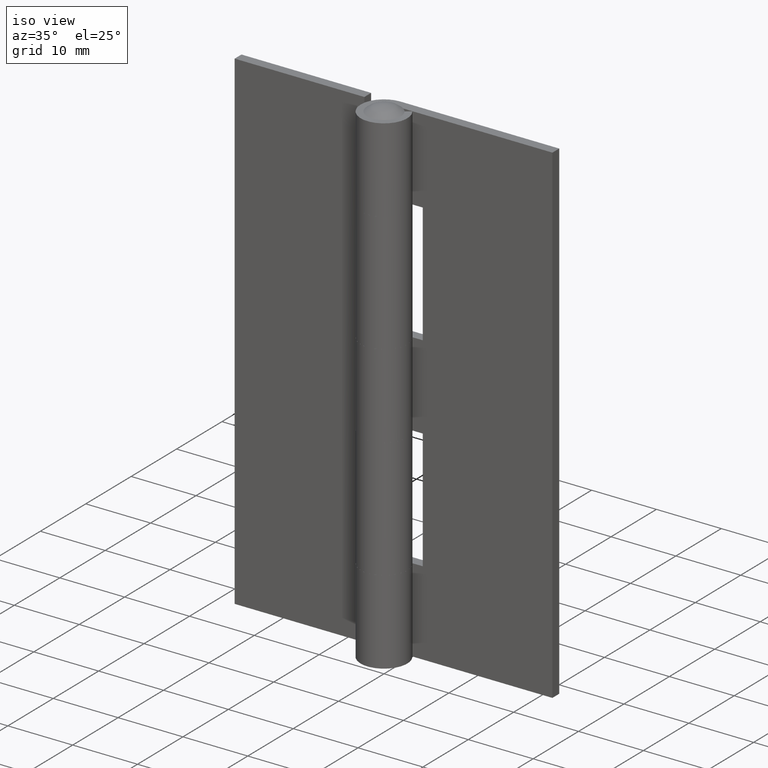
[diagram: clean part render]
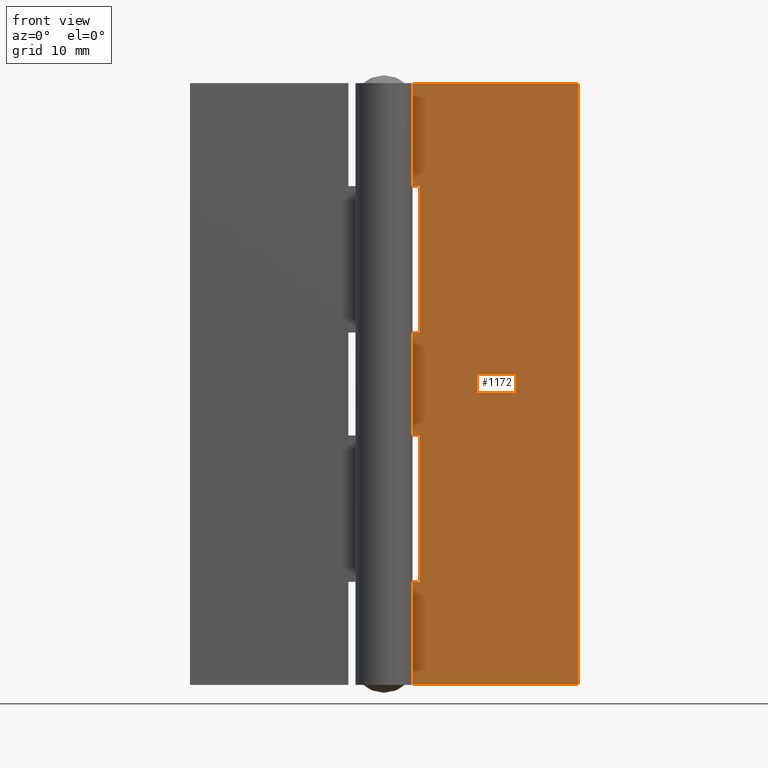
[diagram: tour spotlight — one face highlighted and labeled with its STEP entity id]
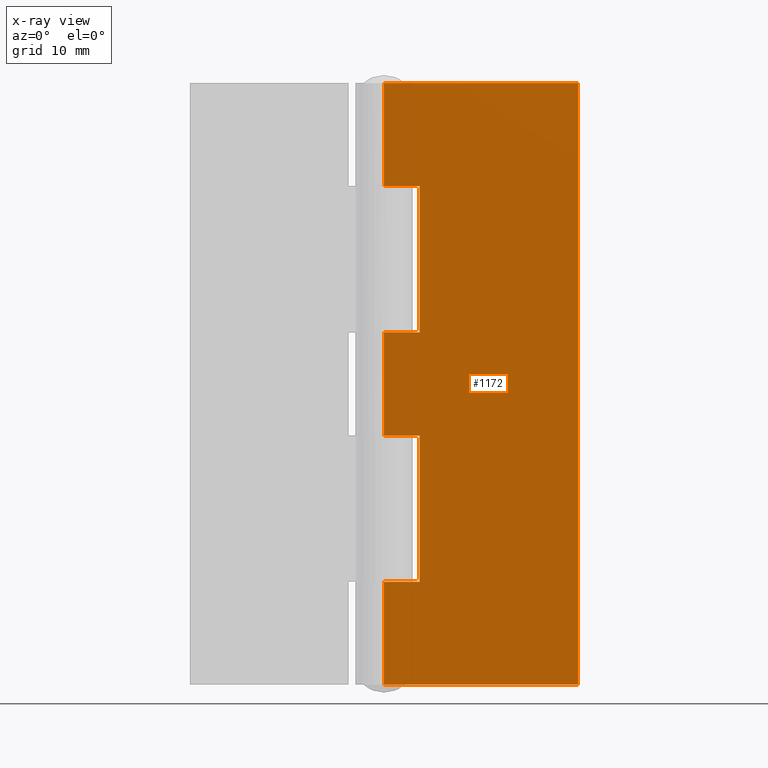
[diagram: x-ray of the same camera — body ghosted, this tour face saturated]
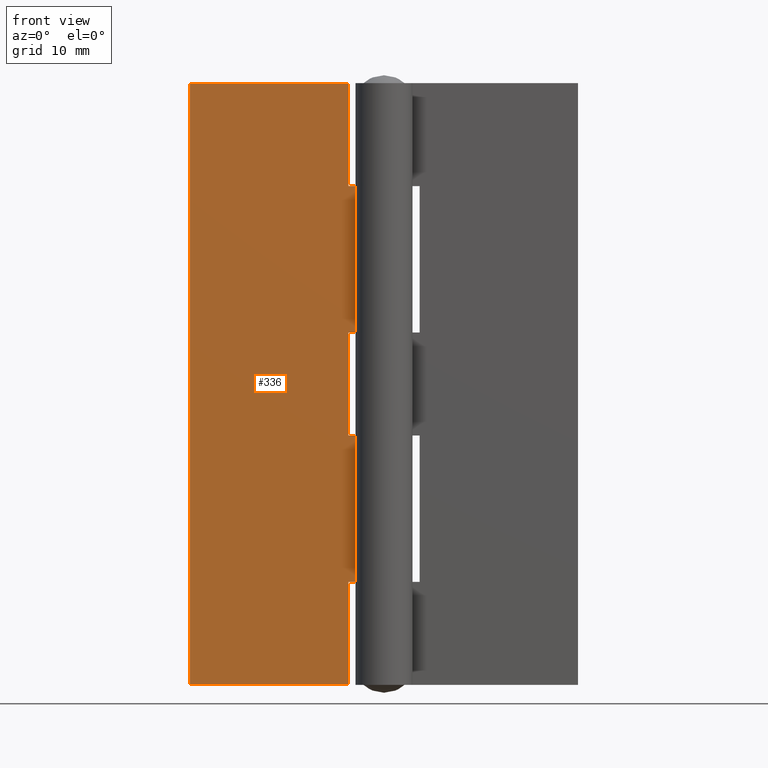
[diagram: tour spotlight — one face highlighted and labeled with its STEP entity id]
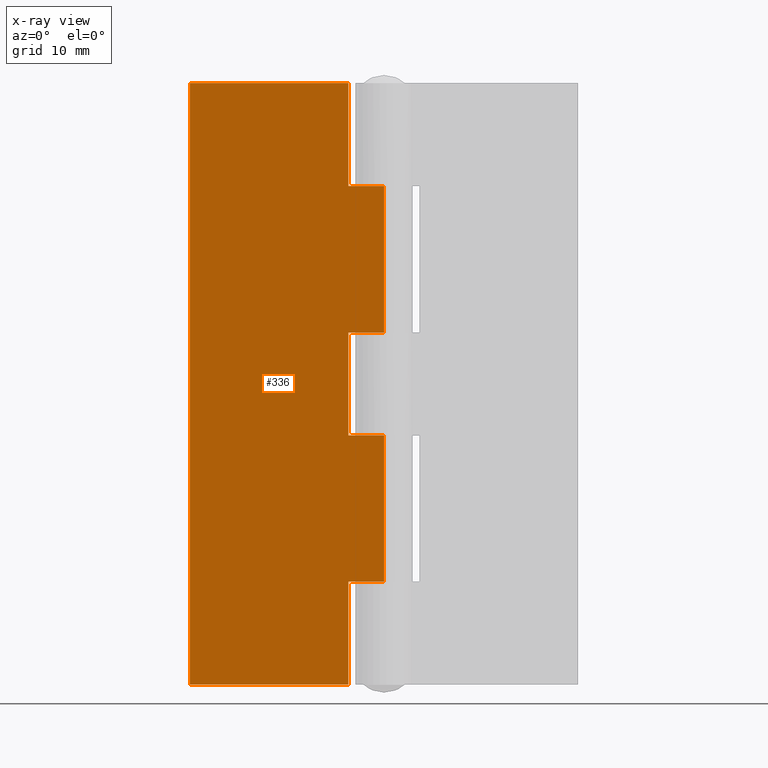
[diagram: x-ray of the same camera — body ghosted, this tour face saturated]
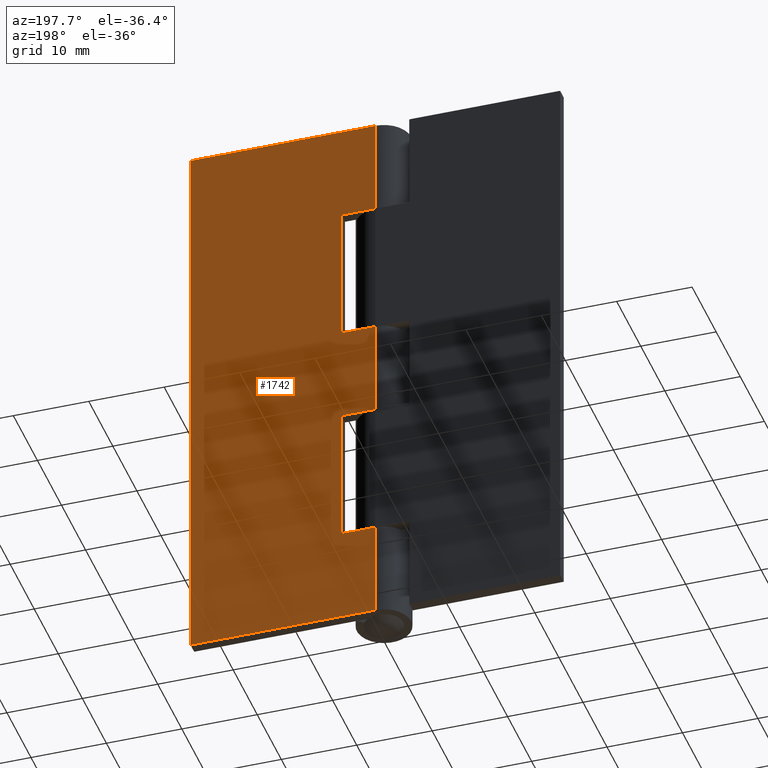
[diagram: tour spotlight — one face highlighted and labeled with its STEP entity id]
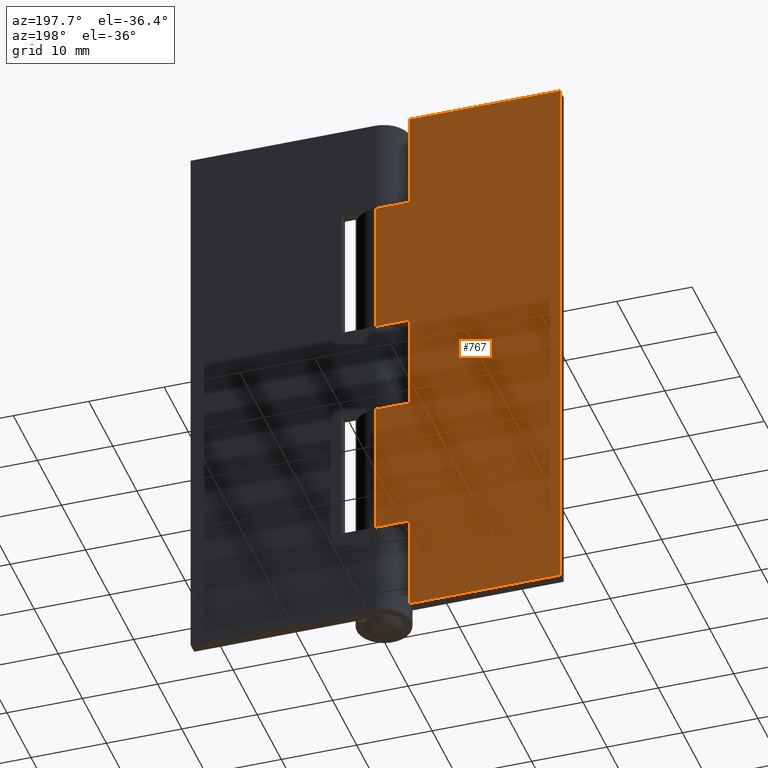
[diagram: tour spotlight — one face highlighted and labeled with its STEP entity id]
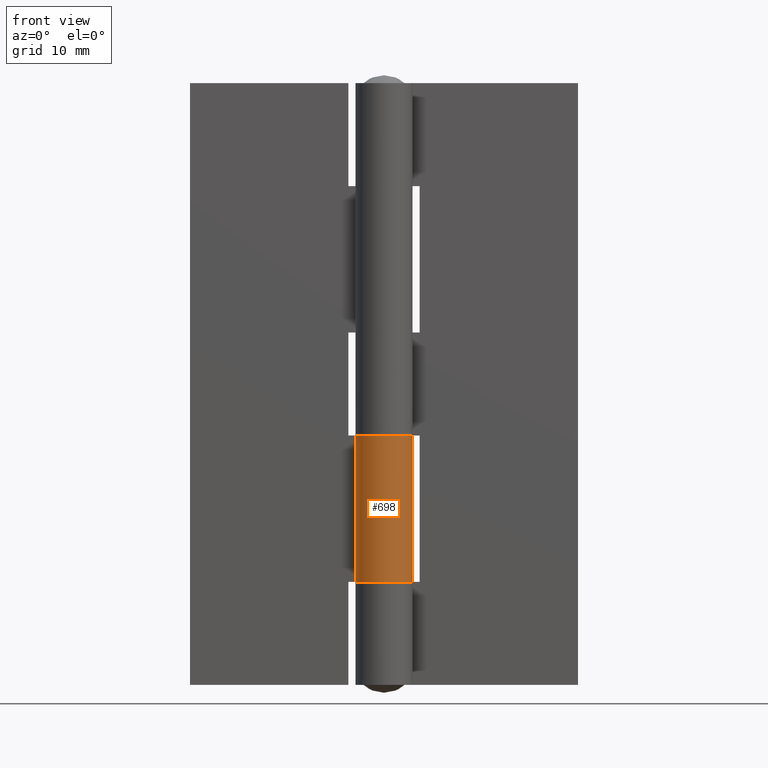
[diagram: tour spotlight — one face highlighted and labeled with its STEP entity id]
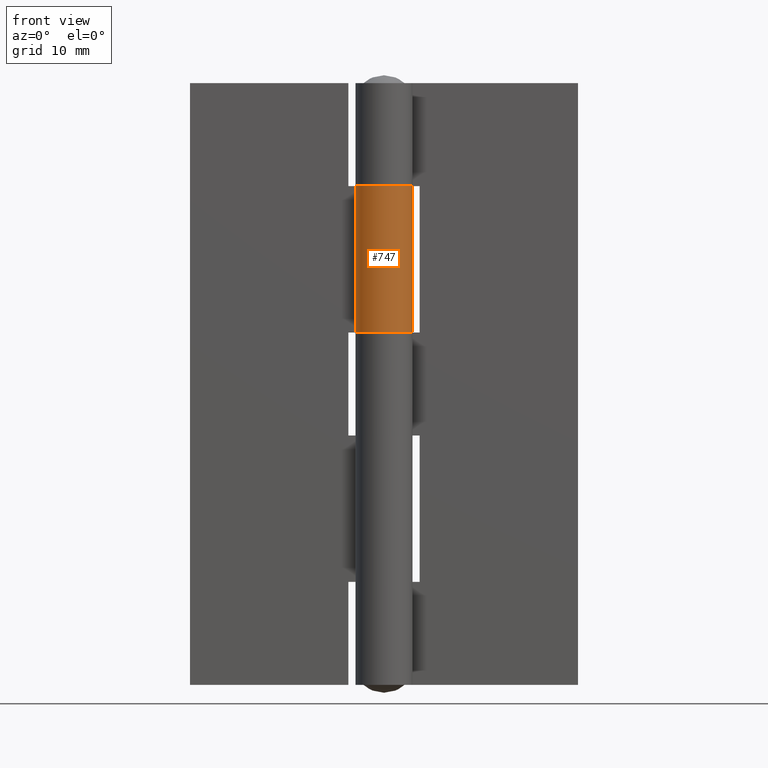
[diagram: tour spotlight — one face highlighted and labeled with its STEP entity id]
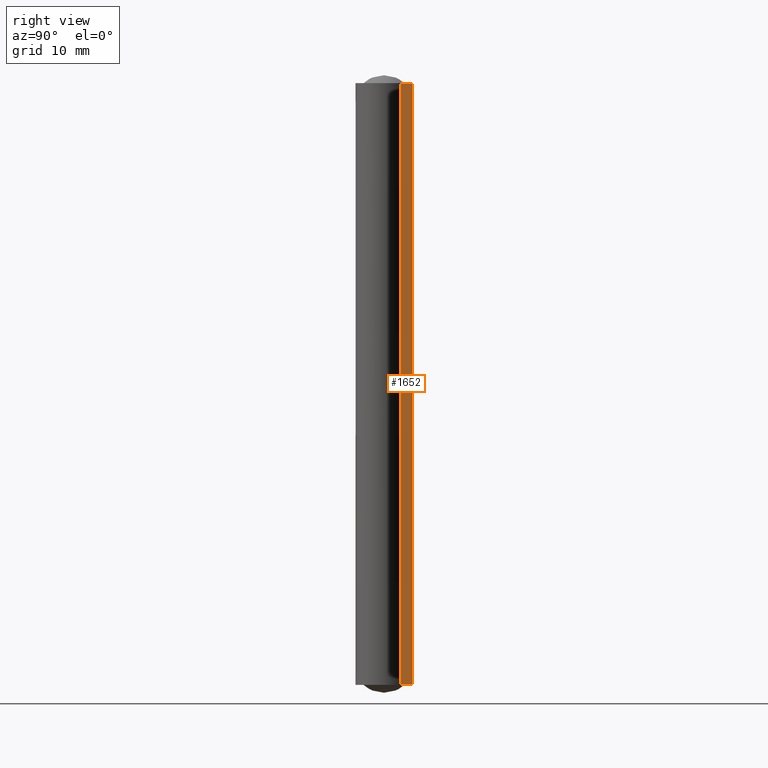
[diagram: tour spotlight — one face highlighted and labeled with its STEP entity id]
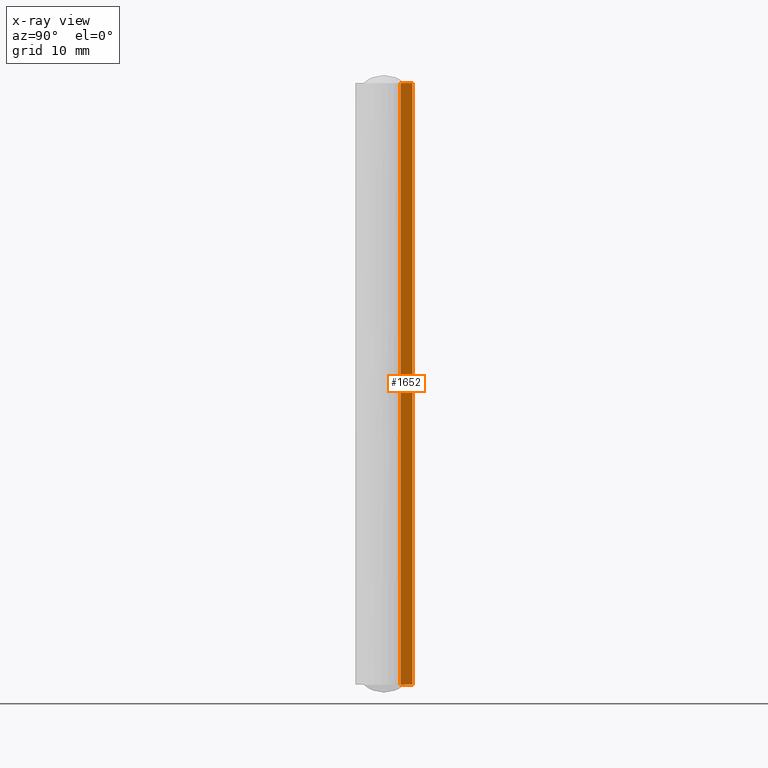
[diagram: x-ray of the same camera — body ghosted, this tour face saturated]
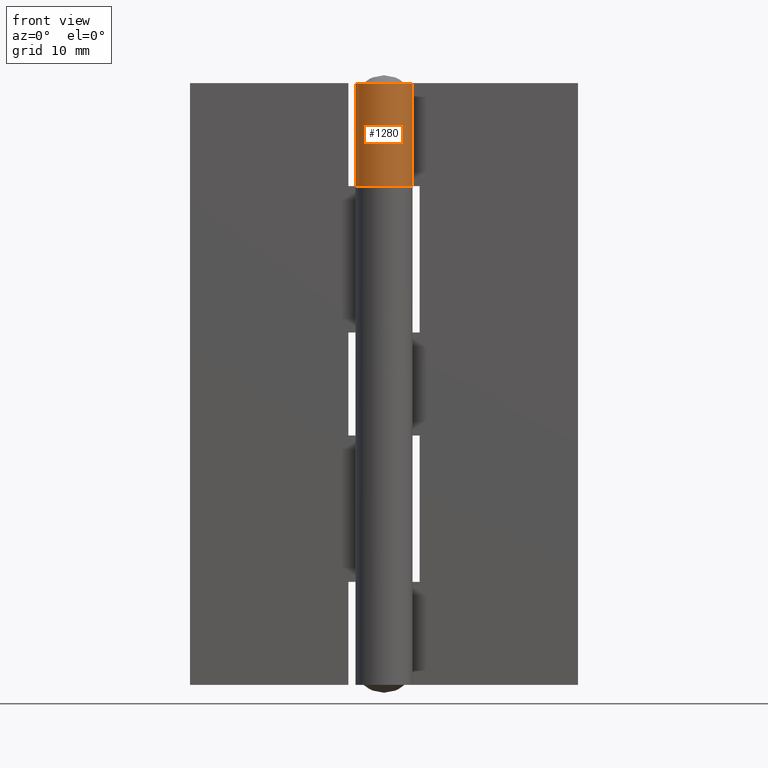
[diagram: tour spotlight — one face highlighted and labeled with its STEP entity id]
A machine part: a face-by-face anatomy tour. The part has 44 B-rep faces; the first image is the clean iso view, then the 8 largest visible faces are spotlighted one at a time (largest first), each with its STEP entity span.

Face 1 — front view, entity #1172. An x-ray twin of the same camera follows (body ghosted, this face saturated) — the face is partly hidden behind the body. In plain terms, the highlighted face is a freeform B-spline surface patch.
Definition (entity closure, byte-faithful):
#794=CARTESIAN_POINT('',(0.002898274659664,2.099998000000030,13.0));
#795=VERTEX_POINT('',#794);
#834=CARTESIAN_POINT('',(0.002898274659664,2.099998000000030,0.0));
#835=VERTEX_POINT('',#834);
#865=CARTESIAN_POINT('',(0.002898274659664,2.099998000000030,13.0));
#866=CARTESIAN_POINT('',(0.002898274659664,2.099998000000030,0.0));
#867=QUASI_UNIFORM_CURVE('',1,(#865,#866),.UNSPECIFIED.,.F.,.U.);
#868=EDGE_CURVE('',#795,#835,#867,.T.);
#931=CARTESIAN_POINT('',(0.002898274659664,2.099998000000030,63.0));
#932=VERTEX_POINT('',#931);
#963=CARTESIAN_POINT('',(0.002898274659664,2.099998000000030,76.0));
#964=VERTEX_POINT('',#963);
#965=CARTESIAN_POINT('',(0.002898274659664,2.099998000000030,76.0));
#966=CARTESIAN_POINT('',(0.002898274659664,2.099998000000030,63.0));
#967=QUASI_UNIFORM_CURVE('',1,(#965,#966),.UNSPECIFIED.,.F.,.U.);
#968=EDGE_CURVE('',#964,#932,#967,.T.);
#1027=CARTESIAN_POINT('',(0.002898274659664,2.099998000000030,44.500000000000000));
#1028=VERTEX_POINT('',#1027);
#1065=CARTESIAN_POINT('',(0.002898274659664,2.099998000000030,31.500000000000000));
#1066=VERTEX_POINT('',#1065);
#1097=CARTESIAN_POINT('',(0.002898274659664,2.099998000000030,44.500000000000000));
#1098=CARTESIAN_POINT('',(0.002898274659664,2.099998000000030,31.500000000000000));
#1099=QUASI_UNIFORM_CURVE('',1,(#1097,#1098),.UNSPECIFIED.,.F.,.U.);
#1100=EDGE_CURVE('',#1028,#1066,#1099,.T.);
#1105=CARTESIAN_POINT('',(-1.220731909040949,2.099998000000030,79.796199852697242));
#1106=CARTESIAN_POINT('',(-1.220731909040949,2.099998000000030,-3.796201891176106));
#1107=CARTESIAN_POINT('',(25.723630840764081,2.099998000000030,79.796199852697242));
#1108=CARTESIAN_POINT('',(25.723630840764081,2.099998000000030,-3.796201891176106));
#1109=B_SPLINE_SURFACE_WITH_KNOTS('',1,1,((#1105,#1107),(#1106,#1108)),.UNSPECIFIED.,.F.,.F.,.U.,(2,2),(2,2),(0.0,83.592401743873353),(0.0,26.944362749805030),.UNSPECIFIED.);
#1110=CARTESIAN_POINT('',(4.500000000000000,2.099998000000045,63.0));
#1111=VERTEX_POINT('',#1110);
#1112=CARTESIAN_POINT('',(4.500000000000000,2.099998000000045,44.500000000000000));
#1113=VERTEX_POINT('',#1112);
#1114=CARTESIAN_POINT('',(4.500000000000000,2.099998000000045,63.0));
#1115=CARTESIAN_POINT('',(4.500000000000000,2.099998000000045,44.500000000000000));
#1116=QUASI_UNIFORM_CURVE('',1,(#1114,#1115),.UNSPECIFIED.,.F.,.U.);
#1117=EDGE_CURVE('',#1111,#1113,#1116,.T.);
#1118=ORIENTED_EDGE('',*,*,#1117,.T.);
#1119=CARTESIAN_POINT('',(4.500000000000000,2.099998000000045,44.500000000000000));
#1120=CARTESIAN_POINT('',(0.002898274659664,2.099998000000030,44.500000000000000));
#1121=QUASI_UNIFORM_CURVE('',1,(#1119,#1120),.UNSPECIFIED.,.F.,.U.);
#1122=EDGE_CURVE('',#1113,#1028,#1121,.T.);
#1123=ORIENTED_EDGE('',*,*,#1122,.T.);
#1124=ORIENTED_EDGE('',*,*,#1100,.T.);
#1125=CARTESIAN_POINT('',(4.500000000000000,2.099998000000045,31.500000000000000));
#1126=VERTEX_POINT('',#1125);
#1127=CARTESIAN_POINT('',(0.002898274659664,2.099998000000030,31.500000000000000));
#1128=CARTESIAN_POINT('',(4.500000000000000,2.099998000000045,31.500000000000000));
#1129=QUASI_UNIFORM_CURVE('',1,(#1127,#1128),.UNSPECIFIED.,.F.,.U.);
#1130=EDGE_CURVE('',#1066,#1126,#1129,.T.);
#1131=ORIENTED_EDGE('',*,*,#1130,.T.);
#1132=CARTESIAN_POINT('',(4.500000000000000,2.099998000000045,13.0));
#1133=VERTEX_POINT('',#1132);
#1134=CARTESIAN_POINT('',(4.500000000000000,2.099998000000045,31.500000000000000));
#1135=CARTESIAN_POINT('',(4.500000000000000,2.099998000000045,13.0));
#1136=QUASI_UNIFORM_CURVE('',1,(#1134,#1135),.UNSPECIFIED.,.F.,.U.);
#1137=EDGE_CURVE('',#1126,#1133,#1136,.T.);
#1138=ORIENTED_EDGE('',*,*,#1137,.T.);
#1139=CARTESIAN_POINT('',(4.500000000000000,2.099998000000045,13.0));
#1140=CARTESIAN_POINT('',(0.002898274659664,2.099998000000030,13.0));
#1141=QUASI_UNIFORM_CURVE('',1,(#1139,#1140),.UNSPECIFIED.,.F.,.U.);
#1142=EDGE_CURVE('',#1133,#795,#1141,.T.);
#1143=ORIENTED_EDGE('',*,*,#1142,.T.);
#1144=ORIENTED_EDGE('',*,*,#868,.T.);
#1145=CARTESIAN_POINT('',(24.500000000000000,2.099998000000030,0.0));
#1146=VERTEX_POINT('',#1145);
#1147=CARTESIAN_POINT('',(24.500000000000000,2.099998000000030,0.0));
#1148=CARTESIAN_POINT('',(0.002898274659664,2.099998000000030,0.0));
#1149=QUASI_UNIFORM_CURVE('',1,(#1147,#1148),.UNSPECIFIED.,.F.,.U.);
#1150=EDGE_CURVE('',#1146,#835,#1149,.T.);
#1151=ORIENTED_EDGE('',*,*,#1150,.F.);
#1152=CARTESIAN_POINT('',(24.500000000000000,2.099998000000030,76.0));
#1153=VERTEX_POINT('',#1152);
#1154=CARTESIAN_POINT('',(24.500000000000000,2.099998000000030,76.0));
#1155=CARTESIAN_POINT('',(24.500000000000000,2.099998000000030,0.0));
#1156=QUASI_UNIFORM_CURVE('',1,(#1154,#1155),.UNSPECIFIED.,.F.,.U.);
#1157=EDGE_CURVE('',#1153,#1146,#1156,.T.);
#1158=ORIENTED_EDGE('',*,*,#1157,.F.);
#1159=CARTESIAN_POINT('',(24.500000000000000,2.099998000000030,76.0));
#1160=CARTESIAN_POINT('',(0.002898274659664,2.099998000000030,76.0));
#1161=QUASI_UNIFORM_CURVE('',1,(#1159,#1160),.UNSPECIFIED.,.F.,.U.);
#1162=EDGE_CURVE('',#1153,#964,#1161,.T.);
#1163=ORIENTED_EDGE('',*,*,#1162,.T.);
#1164=ORIENTED_EDGE('',*,*,#968,.T.);
#1165=CARTESIAN_POINT('',(0.002898274659664,2.099998000000030,63.0));
#1166=CARTESIAN_POINT('',(4.500000000000000,2.099998000000045,63.0));
#1167=QUASI_UNIFORM_CURVE('',1,(#1165,#1166),.UNSPECIFIED.,.F.,.U.);
#1168=EDGE_CURVE('',#932,#1111,#1167,.T.);
#1169=ORIENTED_EDGE('',*,*,#1168,.T.);
#1170=EDGE_LOOP('',(#1118,#1123,#1124,#1131,#1138,#1143,#1144,#1151,#1158,#1163,#1164,#1169));
#1171=FACE_OUTER_BOUND('',#1170,.T.);
#1172=ADVANCED_FACE('',(#1171),#1109,.T.);

Face 2 — front view, entity #336. An x-ray twin of the same camera follows (body ghosted, this face saturated) — the face is partly hidden behind the body. In plain terms, the highlighted face is a freeform B-spline surface patch.
Definition (entity closure, byte-faithful):
#63=CARTESIAN_POINT('',(-0.002898274659636,2.099998000000030,13.0));
#64=VERTEX_POINT('',#63);
#95=CARTESIAN_POINT('',(-0.002898274659636,2.099998000000030,31.500000000000000));
#96=VERTEX_POINT('',#95);
#125=CARTESIAN_POINT('',(-0.002898274659636,2.099998000000030,31.500000000000000));
#126=CARTESIAN_POINT('',(-0.002898274659636,2.099998000000030,13.0));
#127=QUASI_UNIFORM_CURVE('',1,(#125,#126),.UNSPECIFIED.,.F.,.U.);
#128=EDGE_CURVE('',#96,#64,#127,.T.);
#191=CARTESIAN_POINT('',(-0.002898274659636,2.099998000000030,63.0));
#192=VERTEX_POINT('',#191);
#221=CARTESIAN_POINT('',(-0.002898274659636,2.099998000000030,44.500000000000000));
#222=VERTEX_POINT('',#221);
#223=CARTESIAN_POINT('',(-0.002898274659636,2.099998000000030,63.0));
#224=CARTESIAN_POINT('',(-0.002898274659636,2.099998000000030,44.500000000000000));
#225=QUASI_UNIFORM_CURVE('',1,(#223,#224),.UNSPECIFIED.,.F.,.U.);
#226=EDGE_CURVE('',#192,#222,#225,.T.);
#261=CARTESIAN_POINT('',(-25.723630183700621,2.099998000000030,-3.796199852697257));
#262=CARTESIAN_POINT('',(-25.723630183700621,2.099998000000030,79.796201891176096));
#263=CARTESIAN_POINT('',(1.220732566104448,2.099998000000030,-3.796199852697257));
#264=CARTESIAN_POINT('',(1.220732566104448,2.099998000000030,79.796201891176096));
#265=B_SPLINE_SURFACE_WITH_KNOTS('',1,1,((#261,#263),(#262,#264)),.UNSPECIFIED.,.F.,.F.,.U.,(2,2),(2,2),(0.0,83.592401743873353),(0.0,26.944362749805070),.UNSPECIFIED.);
#266=CARTESIAN_POINT('',(-4.499999999999900,2.099998000000045,76.0));
#267=VERTEX_POINT('',#266);
#268=CARTESIAN_POINT('',(-4.499999999999900,2.099998000000045,63.0));
#269=VERTEX_POINT('',#268);
#270=CARTESIAN_POINT('',(-4.499999999999900,2.099998000000045,76.0));
#271=CARTESIAN_POINT('',(-4.499999999999900,2.099998000000045,63.0));
#272=QUASI_UNIFORM_CURVE('',1,(#270,#271),.UNSPECIFIED.,.F.,.U.);
#273=EDGE_CURVE('',#267,#269,#272,.T.);
#274=ORIENTED_EDGE('',*,*,#273,.F.);
#275=CARTESIAN_POINT('',(-24.500000000000000,2.099998000000030,76.0));
#276=VERTEX_POINT('',#275);
#277=CARTESIAN_POINT('',(-24.500000000000000,2.099998000000030,76.0));
#278=CARTESIAN_POINT('',(-4.499999999999900,2.099998000000045,76.0));
#279=QUASI_UNIFORM_CURVE('',1,(#277,#278),.UNSPECIFIED.,.F.,.U.);
#280=EDGE_CURVE('',#276,#267,#279,.T.);
#281=ORIENTED_EDGE('',*,*,#280,.F.);
#282=CARTESIAN_POINT('',(-24.500000000000000,2.099998000000030,0.0));
#283=VERTEX_POINT('',#282);
#284=CARTESIAN_POINT('',(-24.500000000000000,2.099998000000030,76.0));
#285=CARTESIAN_POINT('',(-24.500000000000000,2.099998000000030,0.0));
#286=QUASI_UNIFORM_CURVE('',1,(#284,#285),.UNSPECIFIED.,.F.,.U.);
#287=EDGE_CURVE('',#276,#283,#286,.T.);
#288=ORIENTED_EDGE('',*,*,#287,.T.);
#289=CARTESIAN_POINT('',(-4.500000000000000,2.099998000000030,0.0));
#290=VERTEX_POINT('',#289);
#291=CARTESIAN_POINT('',(-24.500000000000000,2.099998000000030,0.0));
#292=CARTESIAN_POINT('',(-4.500000000000000,2.099998000000030,0.0));
#293=QUASI_UNIFORM_CURVE('',1,(#291,#292),.UNSPECIFIED.,.F.,.U.);
#294=EDGE_CURVE('',#283,#290,#293,.T.);
#295=ORIENTED_EDGE('',*,*,#294,.T.);
#296=CARTESIAN_POINT('',(-4.500000000000000,2.099998000000045,13.0));
#297=VERTEX_POINT('',#296);
#298=CARTESIAN_POINT('',(-4.500000000000000,2.099998000000045,13.0));
#299=CARTESIAN_POINT('',(-4.500000000000000,2.099998000000030,0.0));
#300=QUASI_UNIFORM_CURVE('',1,(#298,#299),.UNSPECIFIED.,.F.,.U.);
#301=EDGE_CURVE('',#297,#290,#300,.T.);
#302=ORIENTED_EDGE('',*,*,#301,.F.);
#303=CARTESIAN_POINT('',(-0.002898274659636,2.099998000000030,13.0));
#304=CARTESIAN_POINT('',(-4.500000000000000,2.099998000000045,13.0));
#305=QUASI_UNIFORM_CURVE('',1,(#303,#304),.UNSPECIFIED.,.F.,.U.);
#306=EDGE_CURVE('',#64,#297,#305,.T.);
#307=ORIENTED_EDGE('',*,*,#306,.F.);
#308=ORIENTED_EDGE('',*,*,#128,.F.);
#309=CARTESIAN_POINT('',(-4.500000000000000,2.099998000000045,31.500000000000000));
#310=VERTEX_POINT('',#309);
#311=CARTESIAN_POINT('',(-0.002898274659636,2.099998000000030,31.500000000000000));
#312=CARTESIAN_POINT('',(-4.500000000000000,2.099998000000045,31.500000000000000));
#313=QUASI_UNIFORM_CURVE('',1,(#311,#312),.UNSPECIFIED.,.F.,.U.);
#314=EDGE_CURVE('',#96,#310,#313,.T.);
#315=ORIENTED_EDGE('',*,*,#314,.T.);
#316=CARTESIAN_POINT('',(-4.500000000000000,2.099998000000045,44.500000000000000));
#317=VERTEX_POINT('',#316);
#318=CARTESIAN_POINT('',(-4.500000000000000,2.099998000000045,31.500000000000000));
#319=CARTESIAN_POINT('',(-4.500000000000000,2.099998000000045,44.500000000000000));
#320=QUASI_UNIFORM_CURVE('',1,(#318,#319),.UNSPECIFIED.,.F.,.U.);
#321=EDGE_CURVE('',#310,#317,#320,.T.);
#322=ORIENTED_EDGE('',*,*,#321,.T.);
#323=CARTESIAN_POINT('',(-4.500000000000000,2.099998000000045,44.500000000000000));
#324=CARTESIAN_POINT('',(-0.002898274659636,2.099998000000030,44.500000000000000));
#325=QUASI_UNIFORM_CURVE('',1,(#323,#324),.UNSPECIFIED.,.F.,.U.);
#326=EDGE_CURVE('',#317,#222,#325,.T.);
#327=ORIENTED_EDGE('',*,*,#326,.T.);
#328=ORIENTED_EDGE('',*,*,#226,.F.);
#329=CARTESIAN_POINT('',(-4.499999999999900,2.099998000000045,63.0));
#330=CARTESIAN_POINT('',(-0.002898274659636,2.099998000000030,63.0));
#331=QUASI_UNIFORM_CURVE('',1,(#329,#330),.UNSPECIFIED.,.F.,.U.);
#332=EDGE_CURVE('',#269,#192,#331,.T.);
#333=ORIENTED_EDGE('',*,*,#332,.F.);
#334=EDGE_LOOP('',(#274,#281,#288,#295,#302,#307,#308,#315,#322,#327,#328,#333));
#335=FACE_OUTER_BOUND('',#334,.T.);
#336=ADVANCED_FACE('',(#335),#265,.F.);

Face 3 — auxiliary view, entity #1742. In plain terms, the highlighted face is a freeform B-spline surface patch.
Definition (entity closure, byte-faithful):
#1195=CARTESIAN_POINT('',(0.003794732611929,3.599998000000105,63.0));
#1196=VERTEX_POINT('',#1195);
#1238=CARTESIAN_POINT('',(0.003794732611929,3.599998000000085,76.0));
#1239=VERTEX_POINT('',#1238);
#1273=CARTESIAN_POINT('',(0.003794732611929,3.599998000000085,76.0));
#1274=CARTESIAN_POINT('',(0.003794732611929,3.599998000000105,63.0));
#1275=QUASI_UNIFORM_CURVE('',1,(#1273,#1274),.UNSPECIFIED.,.F.,.U.);
#1276=EDGE_CURVE('',#1239,#1196,#1275,.T.);
#1287=CARTESIAN_POINT('',(4.500000000000000,3.599998000000105,63.0));
#1288=VERTEX_POINT('',#1287);
#1289=CARTESIAN_POINT('',(4.500000000000000,3.599998000000105,63.0));
#1290=CARTESIAN_POINT('',(0.003794732611929,3.599998000000105,63.0));
#1291=QUASI_UNIFORM_CURVE('',1,(#1289,#1290),.UNSPECIFIED.,.F.,.U.);
#1292=EDGE_CURVE('',#1288,#1196,#1291,.T.);
#1312=CARTESIAN_POINT('',(4.500000000000000,3.599998000000105,44.500000000000000));
#1313=VERTEX_POINT('',#1312);
#1314=CARTESIAN_POINT('',(4.500000000000000,3.599998000000105,44.500000000000000));
#1315=CARTESIAN_POINT('',(4.500000000000000,3.599998000000105,63.0));
#1316=QUASI_UNIFORM_CURVE('',1,(#1314,#1315),.UNSPECIFIED.,.F.,.U.);
#1317=EDGE_CURVE('',#1313,#1288,#1316,.T.);
#1343=CARTESIAN_POINT('',(0.003794732611929,3.599998000000105,44.500000000000000));
#1344=VERTEX_POINT('',#1343);
#1345=CARTESIAN_POINT('',(0.003794732611929,3.599998000000105,44.500000000000000));
#1346=CARTESIAN_POINT('',(4.500000000000000,3.599998000000105,44.500000000000000));
#1347=QUASI_UNIFORM_CURVE('',1,(#1345,#1346),.UNSPECIFIED.,.F.,.U.);
#1348=EDGE_CURVE('',#1344,#1313,#1347,.T.);
#1397=CARTESIAN_POINT('',(0.003794732611929,3.599998000000105,31.500000000000000));
#1398=VERTEX_POINT('',#1397);
#1406=CARTESIAN_POINT('',(4.500000000000000,3.599998000000105,31.500000000000000));
#1407=VERTEX_POINT('',#1406);
#1408=CARTESIAN_POINT('',(4.500000000000000,3.599998000000105,31.500000000000000));
#1409=CARTESIAN_POINT('',(0.003794732611929,3.599998000000105,31.500000000000000));
#1410=QUASI_UNIFORM_CURVE('',1,(#1408,#1409),.UNSPECIFIED.,.F.,.U.);
#1411=EDGE_CURVE('',#1407,#1398,#1410,.T.);
#1468=CARTESIAN_POINT('',(4.500000000000000,3.599998000000105,13.0));
#1469=VERTEX_POINT('',#1468);
#1470=CARTESIAN_POINT('',(4.500000000000000,3.599998000000105,13.0));
#1471=CARTESIAN_POINT('',(4.500000000000000,3.599998000000105,31.500000000000000));
#1472=QUASI_UNIFORM_CURVE('',1,(#1470,#1471),.UNSPECIFIED.,.F.,.U.);
#1473=EDGE_CURVE('',#1469,#1407,#1472,.T.);
#1499=CARTESIAN_POINT('',(0.003794732611929,3.599998000000105,13.0));
#1500=VERTEX_POINT('',#1499);
#1501=CARTESIAN_POINT('',(0.003794732611929,3.599998000000105,13.0));
#1502=CARTESIAN_POINT('',(4.500000000000000,3.599998000000105,13.0));
#1503=QUASI_UNIFORM_CURVE('',1,(#1501,#1502),.UNSPECIFIED.,.F.,.U.);
#1504=EDGE_CURVE('',#1500,#1469,#1503,.T.);
#1556=CARTESIAN_POINT('',(0.003794732611929,3.599998000000085,0.0));
#1557=VERTEX_POINT('',#1556);
#1591=CARTESIAN_POINT('',(24.500000000000000,3.599998000000085,0.0));
#1592=VERTEX_POINT('',#1591);
#1593=CARTESIAN_POINT('',(0.003794732611929,3.599998000000085,0.0));
#1594=CARTESIAN_POINT('',(24.500000000000000,3.599998000000085,0.0));
#1595=QUASI_UNIFORM_CURVE('',1,(#1593,#1594),.UNSPECIFIED.,.F.,.U.);
#1596=EDGE_CURVE('',#1557,#1592,#1595,.T.);
#1622=CARTESIAN_POINT('',(24.500000000000000,3.599998000000085,76.0));
#1623=VERTEX_POINT('',#1622);
#1629=CARTESIAN_POINT('',(0.003794732611929,3.599998000000085,76.0));
#1630=CARTESIAN_POINT('',(24.500000000000000,3.599998000000085,76.0));
#1631=QUASI_UNIFORM_CURVE('',1,(#1629,#1630),.UNSPECIFIED.,.F.,.U.);
#1632=EDGE_CURVE('',#1239,#1623,#1631,.T.);
#1643=CARTESIAN_POINT('',(24.500000000000000,3.599998000000085,76.0));
#1644=CARTESIAN_POINT('',(24.500000000000000,3.599998000000085,0.0));
#1645=QUASI_UNIFORM_CURVE('',1,(#1643,#1644),.UNSPECIFIED.,.F.,.U.);
#1646=EDGE_CURVE('',#1623,#1592,#1645,.T.);
#1693=CARTESIAN_POINT('',(0.003794732611929,3.599998000000105,13.0));
#1694=CARTESIAN_POINT('',(0.003794732611929,3.599998000000085,0.0));
#1695=QUASI_UNIFORM_CURVE('',1,(#1693,#1694),.UNSPECIFIED.,.F.,.U.);
#1696=EDGE_CURVE('',#1500,#1557,#1695,.T.);
#1719=CARTESIAN_POINT('',(-1.219790673015706,3.599998000000085,-3.796199852697257));
#1720=CARTESIAN_POINT('',(-1.219790673015706,3.599998000000085,79.796201891176096));
#1721=CARTESIAN_POINT('',(25.723586062667060,3.599998000000085,-3.796199852697257));
#1722=CARTESIAN_POINT('',(25.723586062667060,3.599998000000085,79.796201891176096));
#1723=B_SPLINE_SURFACE_WITH_KNOTS('',1,1,((#1719,#1721),(#1720,#1722)),.UNSPECIFIED.,.F.,.F.,.U.,(2,2),(2,2),(0.0,83.592401743873353),(0.0,26.943376735682762),.UNSPECIFIED.);
#1724=CARTESIAN_POINT('',(0.003794732611929,3.599998000000105,44.500000000000000));
#1725=CARTESIAN_POINT('',(0.003794732611929,3.599998000000105,31.500000000000000));
#1726=QUASI_UNIFORM_CURVE('',1,(#1724,#1725),.UNSPECIFIED.,.F.,.U.);
#1727=EDGE_CURVE('',#1344,#1398,#1726,.T.);
#1728=ORIENTED_EDGE('',*,*,#1727,.F.);
#1729=ORIENTED_EDGE('',*,*,#1348,.T.);
#1730=ORIENTED_EDGE('',*,*,#1317,.T.);
#1731=ORIENTED_EDGE('',*,*,#1292,.T.);
#1732=ORIENTED_EDGE('',*,*,#1276,.F.);
#1733=ORIENTED_EDGE('',*,*,#1632,.T.);
#1734=ORIENTED_EDGE('',*,*,#1646,.T.);
#1735=ORIENTED_EDGE('',*,*,#1596,.F.);
#1736=ORIENTED_EDGE('',*,*,#1696,.F.);
#1737=ORIENTED_EDGE('',*,*,#1504,.T.);
#1738=ORIENTED_EDGE('',*,*,#1473,.T.);
#1739=ORIENTED_EDGE('',*,*,#1411,.T.);
#1740=EDGE_LOOP('',(#1728,#1729,#1730,#1731,#1732,#1733,#1734,#1735,#1736,#1737,#1738,#1739));
#1741=FACE_OUTER_BOUND('',#1740,.T.);
#1742=ADVANCED_FACE('',(#1741),#1723,.T.);

Face 4 — auxiliary view, entity #767. In plain terms, the highlighted face is a freeform B-spline surface patch.
Definition (entity closure, byte-faithful):
#343=CARTESIAN_POINT('',(-4.499999999999900,3.599998000000105,63.0));
#344=VERTEX_POINT('',#343);
#350=CARTESIAN_POINT('',(-4.499999999999900,3.599998000000085,76.0));
#351=VERTEX_POINT('',#350);
#352=CARTESIAN_POINT('',(-4.499999999999900,3.599998000000085,76.0));
#353=CARTESIAN_POINT('',(-4.499999999999900,3.599998000000105,63.0));
#354=QUASI_UNIFORM_CURVE('',1,(#352,#353),.UNSPECIFIED.,.F.,.U.);
#355=EDGE_CURVE('',#351,#344,#354,.T.);
#373=CARTESIAN_POINT('',(0.003794732611929,3.599998000000105,63.0));
#374=VERTEX_POINT('',#373);
#405=CARTESIAN_POINT('',(-4.499999999999900,3.599998000000105,63.0));
#406=CARTESIAN_POINT('',(0.003794732611929,3.599998000000105,63.0));
#407=QUASI_UNIFORM_CURVE('',1,(#405,#406),.UNSPECIFIED.,.F.,.U.);
#408=EDGE_CURVE('',#344,#374,#407,.T.);
#422=CARTESIAN_POINT('',(-4.500000000000000,3.599998000000105,13.0));
#423=VERTEX_POINT('',#422);
#429=CARTESIAN_POINT('',(0.003794732611929,3.599998000000085,13.0));
#430=VERTEX_POINT('',#429);
#431=CARTESIAN_POINT('',(0.003794732611929,3.599998000000085,13.0));
#432=CARTESIAN_POINT('',(-4.500000000000000,3.599998000000105,13.0));
#433=QUASI_UNIFORM_CURVE('',1,(#431,#432),.UNSPECIFIED.,.F.,.U.);
#434=EDGE_CURVE('',#430,#423,#433,.T.);
#479=CARTESIAN_POINT('',(-4.500000000000000,3.599998000000105,0.0));
#480=VERTEX_POINT('',#479);
#486=CARTESIAN_POINT('',(-4.500000000000000,3.599998000000105,13.0));
#487=CARTESIAN_POINT('',(-4.500000000000000,3.599998000000105,0.0));
#488=QUASI_UNIFORM_CURVE('',1,(#486,#487),.UNSPECIFIED.,.F.,.U.);
#489=EDGE_CURVE('',#423,#480,#488,.T.);
#500=CARTESIAN_POINT('',(-4.500000000000000,3.599998000000105,44.500000000000000));
#501=VERTEX_POINT('',#500);
#507=CARTESIAN_POINT('',(0.003794732611929,3.599998000000085,44.500000000000000));
#508=VERTEX_POINT('',#507);
#509=CARTESIAN_POINT('',(-4.500000000000000,3.599998000000105,44.500000000000000));
#510=CARTESIAN_POINT('',(0.003794732611929,3.599998000000085,44.500000000000000));
#511=QUASI_UNIFORM_CURVE('',1,(#509,#510),.UNSPECIFIED.,.F.,.U.);
#512=EDGE_CURVE('',#501,#508,#511,.T.);
#558=CARTESIAN_POINT('',(0.003794732611929,3.599998000000085,31.500000000000000));
#559=VERTEX_POINT('',#558);
#590=CARTESIAN_POINT('',(-4.500000000000000,3.599998000000105,31.500000000000000));
#591=VERTEX_POINT('',#590);
#592=CARTESIAN_POINT('',(0.003794732611929,3.599998000000085,31.500000000000000));
#593=CARTESIAN_POINT('',(-4.500000000000000,3.599998000000105,31.500000000000000));
#594=QUASI_UNIFORM_CURVE('',1,(#592,#593),.UNSPECIFIED.,.F.,.U.);
#595=EDGE_CURVE('',#559,#591,#594,.T.);
#612=CARTESIAN_POINT('',(-4.500000000000000,3.599998000000105,31.500000000000000));
#613=CARTESIAN_POINT('',(-4.500000000000000,3.599998000000105,44.500000000000000));
#614=QUASI_UNIFORM_CURVE('',1,(#612,#613),.UNSPECIFIED.,.F.,.U.);
#615=EDGE_CURVE('',#591,#501,#614,.T.);
#627=CARTESIAN_POINT('',(-24.500000000000000,3.599998000000000,0.0));
#628=VERTEX_POINT('',#627);
#635=CARTESIAN_POINT('',(-24.500000000000000,3.599998000000000,76.0));
#636=VERTEX_POINT('',#635);
#642=CARTESIAN_POINT('',(-24.500000000000000,3.599998000000000,76.0));
#643=CARTESIAN_POINT('',(-24.500000000000000,3.599998000000000,0.0));
#644=QUASI_UNIFORM_CURVE('',1,(#642,#643),.UNSPECIFIED.,.F.,.U.);
#645=EDGE_CURVE('',#636,#628,#644,.T.);
#655=CARTESIAN_POINT('',(-4.500000000000000,3.599998000000105,0.0));
#656=CARTESIAN_POINT('',(-24.500000000000000,3.599998000000000,0.0));
#657=QUASI_UNIFORM_CURVE('',1,(#655,#656),.UNSPECIFIED.,.F.,.U.);
#658=EDGE_CURVE('',#480,#628,#657,.T.);
#690=CARTESIAN_POINT('',(0.003794732611929,3.599998000000085,31.500000000000000));
#691=CARTESIAN_POINT('',(0.003794732611929,3.599998000000085,13.0));
#692=QUASI_UNIFORM_CURVE('',1,(#690,#691),.UNSPECIFIED.,.F.,.U.);
#693=EDGE_CURVE('',#559,#430,#692,.T.);
#705=CARTESIAN_POINT('',(-4.499999999999900,3.599998000000085,76.0));
#706=CARTESIAN_POINT('',(-24.500000000000000,3.599998000000000,76.0));
#707=QUASI_UNIFORM_CURVE('',1,(#705,#706),.UNSPECIFIED.,.F.,.U.);
#708=EDGE_CURVE('',#351,#636,#707,.T.);
#737=CARTESIAN_POINT('',(0.003794732611929,3.599998000000105,63.0));
#738=CARTESIAN_POINT('',(0.003794732611929,3.599998000000085,44.500000000000000));
#739=QUASI_UNIFORM_CURVE('',1,(#737,#738),.UNSPECIFIED.,.F.,.U.);
#740=EDGE_CURVE('',#374,#508,#739,.T.);
#748=CARTESIAN_POINT('',(-25.723964499400861,3.599998000000085,79.796199852697242));
#749=CARTESIAN_POINT('',(-25.723964499400861,3.599998000000085,-3.796201891176106));
#750=CARTESIAN_POINT('',(1.227759889255776,3.599998000000085,79.796199852697242));
#751=CARTESIAN_POINT('',(1.227759889255776,3.599998000000085,-3.796201891176106));
#752=B_SPLINE_SURFACE_WITH_KNOTS('',1,1,((#748,#750),(#749,#751)),.UNSPECIFIED.,.F.,.F.,.U.,(2,2),(2,2),(0.0,83.592401743873353),(0.0,26.951724388656640),.UNSPECIFIED.);
#753=ORIENTED_EDGE('',*,*,#355,.T.);
#754=ORIENTED_EDGE('',*,*,#408,.T.);
#755=ORIENTED_EDGE('',*,*,#740,.T.);
#756=ORIENTED_EDGE('',*,*,#512,.F.);
#757=ORIENTED_EDGE('',*,*,#615,.F.);
#758=ORIENTED_EDGE('',*,*,#595,.F.);
#759=ORIENTED_EDGE('',*,*,#693,.T.);
#760=ORIENTED_EDGE('',*,*,#434,.T.);
#761=ORIENTED_EDGE('',*,*,#489,.T.);
#762=ORIENTED_EDGE('',*,*,#658,.T.);
#763=ORIENTED_EDGE('',*,*,#645,.F.);
#764=ORIENTED_EDGE('',*,*,#708,.F.);
#765=EDGE_LOOP('',(#753,#754,#755,#756,#757,#758,#759,#760,#761,#762,#763,#764));
#766=FACE_OUTER_BOUND('',#765,.T.);
#767=ADVANCED_FACE('',(#766),#752,.F.);

Face 5 — front view, entity #698. In plain terms, the highlighted face is a freeform B-spline surface patch.
Definition (entity closure, byte-faithful):
#10=CARTESIAN_POINT('',(-2.959308736849860,2.049998000000030,13.0));
#11=VERTEX_POINT('',#10);
#19=CARTESIAN_POINT('',(-2.959308736849860,2.049998000000030,31.500000000000000));
#20=VERTEX_POINT('',#19);
#21=CARTESIAN_POINT('',(-2.959308736849860,2.049998000000030,31.500000000000000));
#22=CARTESIAN_POINT('',(-2.959308736849860,2.049998000000030,13.0));
#23=QUASI_UNIFORM_CURVE('',1,(#21,#22),.UNSPECIFIED.,.F.,.U.);
#24=EDGE_CURVE('',#20,#11,#23,.T.);
#429=CARTESIAN_POINT('',(0.003794732611929,3.599998000000085,13.0));
#430=VERTEX_POINT('',#429);
#436=CARTESIAN_POINT('',(-2.959308736849860,2.049998000000030,13.0));
#437=CARTESIAN_POINT('',(-3.158140820718120,1.763238209038692,13.000000000000011));
#438=CARTESIAN_POINT('',(-3.443316870760941,1.187715029899563,12.999999999999970));
#439=CARTESIAN_POINT('',(-3.601888937470446,0.387455255848201,12.999999999999980));
#440=CARTESIAN_POINT('',(-3.604181417513388,-0.287288566315005,13.000000000000020));
#441=CARTESIAN_POINT('',(-3.498306885895089,-0.954544083905069,12.999999999999959));
#442=CARTESIAN_POINT('',(-3.247278719005252,-1.611050105793723,13.000000000000030));
#443=CARTESIAN_POINT('',(-2.830392061106958,-2.264772189721252,13.000000000000020));
#444=CARTESIAN_POINT('',(-2.375991852765057,-2.733205544430848,12.999999999999931));
#445=CARTESIAN_POINT('',(-1.804130543228963,-3.136000682877232,13.000000000000060));
#446=CARTESIAN_POINT('',(-1.237951851566800,-3.404148046493318,13.000000000000080));
#447=CARTESIAN_POINT('',(-0.450051268895040,-3.605594675821533,12.999999999999909));
#448=CARTESIAN_POINT('',(0.318068306492125,-3.618328502240842,13.000000000000041));
#449=CARTESIAN_POINT('',(1.027147674245510,-3.465568110508880,13.0));
#450=CARTESIAN_POINT('',(1.656800198675201,-3.223094133241956,13.0));
#451=CARTESIAN_POINT('',(2.250758487149259,-2.846513376322633,13.0));
#452=CARTESIAN_POINT('',(2.791847011713117,-2.307833784014764,13.0));
#453=CARTESIAN_POINT('',(3.164175233956119,-1.758375074523151,13.000000000000011));
#454=CARTESIAN_POINT('',(3.405518075090642,-1.208769229138623,13.0));
#455=CARTESIAN_POINT('',(3.555022925283189,-0.653984924824208,13.000000000000011));
#456=CARTESIAN_POINT('',(3.619432779001242,-0.056935490475492,13.0));
#457=CARTESIAN_POINT('',(3.570207424982481,0.604605189711672,13.0));
#458=CARTESIAN_POINT('',(3.408563123247976,1.209183515589843,13.000000000000011));
#459=CARTESIAN_POINT('',(3.154795601774019,1.766367335718983,13.0));
#460=CARTESIAN_POINT('',(2.821521074015195,2.265928885176445,12.999999999999989));
#461=CARTESIAN_POINT('',(2.422995971338992,2.681116195613147,13.000000000000270));
#462=CARTESIAN_POINT('',(1.947796961064938,3.046378522283731,12.999999999998639));
#463=CARTESIAN_POINT('',(1.407636710666498,3.337535055496780,13.000000000003730));
#464=CARTESIAN_POINT('',(0.726513015238329,3.549859972851365,12.999999999992530));
#465=CARTESIAN_POINT('',(0.253027609081004,3.599771999765620,13.000000000007329));
#466=CARTESIAN_POINT('',(0.003794732611929,3.599998000000085,13.0));
#467=B_SPLINE_CURVE_WITH_KNOTS('',3,(#436,#437,#438,#439,#440,#441,#442,#443,#444,#445,#446,#447,#448,#449,#450,#451,#452,#453,#454,#455,#456,#457,#458,#459,#460,#461,#462,#463,#464,#465,#466),.UNSPECIFIED.,.F.,.U.,(4,1,1,1,1,1,1,1,1,1,1,1,1,1,1,1,1,1,1,1,1,1,1,1,1,1,1,1,4),(0.000000431564008,1.046812573485827,1.906701800910582,2.430123403524675,3.065696441738112,3.925612573483994,4.523788265090982,5.383628573477866,5.869648582301977,6.617402212658227,7.252977529584456,8.299806285576052,8.898014936819351,9.421434391863876,10.318631574295010,10.991608009560281,11.701962188293230,12.300157767943521,12.786194377266790,13.421765829755190,14.094715179249521,14.767619056672819,15.291049409454899,15.926620861939170,16.562205484885020,17.010853050912111,17.721207229647639,18.394183664911381,19.141876685198849),.UNSPECIFIED.);
#468=EDGE_CURVE('',#11,#430,#467,.T.);
#558=CARTESIAN_POINT('',(0.003794732611929,3.599998000000085,31.500000000000000));
#559=VERTEX_POINT('',#558);
#560=CARTESIAN_POINT('',(-2.959308736849860,2.049998000000030,31.500000000000000));
#561=CARTESIAN_POINT('',(-3.158146386623828,1.763236225213110,31.500000000000000));
#562=CARTESIAN_POINT('',(-3.420908547504360,1.232854719893422,31.500000000000039));
#563=CARTESIAN_POINT('',(-3.619946302820795,0.327750172854352,31.499999999999890));
#564=CARTESIAN_POINT('',(-3.602130676809762,-0.464864965468368,31.500000000000188));
#565=CARTESIAN_POINT('',(-3.384634457993438,-1.313250029119285,31.499999999999709));
#566=CARTESIAN_POINT('',(-3.034360438910542,-1.995716153311481,31.500000000000160));
#567=CARTESIAN_POINT('',(-2.573184281919597,-2.540076345071043,31.499999999999940));
#568=CARTESIAN_POINT('',(-2.107926862809155,-2.937690188354718,31.500000000000082));
#569=CARTESIAN_POINT('',(-1.541068580981666,-3.282286949092210,31.499999999999819));
#570=CARTESIAN_POINT('',(-0.736495836342617,-3.565645770413044,31.499999999999940));
#571=CARTESIAN_POINT('',(0.167483386951154,-3.637041548331200,31.499999999999979));
#572=CARTESIAN_POINT('',(1.031225932809732,-3.479054595341343,31.500000000000039));
#573=CARTESIAN_POINT('',(1.781700561825067,-3.162759769867697,31.499999999999961));
#574=CARTESIAN_POINT('',(2.393645846795995,-2.723903508284254,31.500000000000011));
#575=CARTESIAN_POINT('',(2.959499855598318,-2.105427498137041,31.500000000000000));
#576=CARTESIAN_POINT('',(3.335907000354122,-1.436395299609206,31.499999999999989));
#577=CARTESIAN_POINT('',(3.563706630267378,-0.655704350613966,31.499999999999989));
#578=CARTESIAN_POINT('',(3.617957246197948,-0.031245649664283,31.500000000000011));
#579=CARTESIAN_POINT('',(3.561982143358623,0.628146690986707,31.500000000000011));
#580=CARTESIAN_POINT('',(3.390979766706948,1.295705886947826,31.499999999999989));
#581=CARTESIAN_POINT('',(3.001357382335250,2.055062550801960,31.499999999999730));
#582=CARTESIAN_POINT('',(2.377496982357163,2.761662670649601,31.500000000002199));
#583=CARTESIAN_POINT('',(1.607713207804900,3.263135600202664,31.499999999993200));
#584=CARTESIAN_POINT('',(0.788820519505915,3.541845333873547,31.500000000012900));
#585=CARTESIAN_POINT('',(0.265499517274083,3.599760480766025,31.499999999985530));
#586=CARTESIAN_POINT('',(0.003794732611929,3.599998000000085,31.500000000000000));
#587=B_SPLINE_CURVE_WITH_KNOTS('',3,(#560,#561,#562,#563,#564,#565,#566,#567,#568,#569,#570,#571,#572,#573,#574,#575,#576,#577,#578,#579,#580,#581,#582,#583,#584,#585,#586),.UNSPECIFIED.,.F.,.U.,(4,1,1,1,1,1,1,1,1,1,1,1,1,1,1,1,1,1,1,1,1,1,1,1,4),(0.000000431564011,1.046812573485827,1.757155898990945,2.766609498330954,3.402182634482536,4.374259734364399,5.047161928783513,5.533162508700094,6.206138943966012,7.028656387805665,8.075497859110254,8.898014936819353,9.645684280342115,10.505580343861240,11.141151796343401,12.150609754319969,12.786194377266790,13.571296462194381,14.019959959126711,14.767619056672819,15.627539888040809,16.562205484885020,17.571663442862700,18.356765527795361,19.141876685198849),.UNSPECIFIED.);
#588=EDGE_CURVE('',#20,#559,#587,.T.);
#666=CARTESIAN_POINT('',(-2.891625897081096,2.144411264503612,31.962500000000009));
#667=CARTESIAN_POINT('',(-2.891625897081096,2.144411264503612,12.525937500000000));
#668=CARTESIAN_POINT('',(-5.619951166608797,-1.534591982503400,31.962500000000013));
#669=CARTESIAN_POINT('',(-5.619951166608797,-1.534591982503400,12.525937499999998));
#670=CARTESIAN_POINT('',(-1.400483212657139,-3.316420777142928,31.962500000000009));
#671=CARTESIAN_POINT('',(-1.400483212657139,-3.316420777142928,12.525937500000000));
#672=CARTESIAN_POINT('',(2.818984741294518,-5.098249571782457,31.962500000000013));
#673=CARTESIAN_POINT('',(2.818984741294518,-5.098249571782457,12.525937499999998));
#674=CARTESIAN_POINT('',(3.553418305796832,-0.577250676940304,31.962500000000009));
#675=CARTESIAN_POINT('',(3.553418305796832,-0.577250676940304,12.525937500000000));
#676=CARTESIAN_POINT('',(4.287851870299146,3.943748217901848,31.962500000000013));
#677=CARTESIAN_POINT('',(4.287851870299146,3.943748217901848,12.525937499999998));
#678=CARTESIAN_POINT('',(-0.278669552984339,3.589198138893937,31.962500000000009));
#679=CARTESIAN_POINT('',(-0.278669552984339,3.589198138893937,12.525937500000000));
#687=(BOUNDED_SURFACE()B_SPLINE_SURFACE(1,2,((#666,#668,#670,#672,#674,#676,#678),(#667,#669,#671,#673,#675,#677,#679)),.UNSPECIFIED.,.F.,.F.,.U.)B_SPLINE_SURFACE_WITH_KNOTS((2,2),(3,2,2,3),(0.0,19.436562500000012),(0.0,6.997441472954725,13.994882945909451,20.992324418864172),.UNSPECIFIED.)GEOMETRIC_REPRESENTATION_ITEM()RATIONAL_B_SPLINE_SURFACE(((1.0,0.617951097721073,1.0,0.617951097721073,1.0,0.617951097721073,1.0),(1.0,0.617951097721073,1.0,0.617951097721073,1.0,0.617951097721073,1.0)))REPRESENTATION_ITEM('')SURFACE());
#688=ORIENTED_EDGE('',*,*,#24,.T.);
#689=ORIENTED_EDGE('',*,*,#468,.T.);
#690=CARTESIAN_POINT('',(0.003794732611929,3.599998000000085,31.500000000000000));
#691=CARTESIAN_POINT('',(0.003794732611929,3.599998000000085,13.0));
#692=QUASI_UNIFORM_CURVE('',1,(#690,#691),.UNSPECIFIED.,.F.,.U.);
#693=EDGE_CURVE('',#559,#430,#692,.T.);
#694=ORIENTED_EDGE('',*,*,#693,.F.);
#695=ORIENTED_EDGE('',*,*,#588,.F.);
#696=EDGE_LOOP('',(#688,#689,#694,#695));
#697=FACE_OUTER_BOUND('',#696,.T.);
#698=ADVANCED_FACE('',(#697),#687,.T.);

Face 6 — front view, entity #747. In plain terms, the highlighted face is a freeform B-spline surface patch.
Definition (entity closure, byte-faithful):
#140=CARTESIAN_POINT('',(-2.959308736849860,2.049998000000030,63.0));
#141=VERTEX_POINT('',#140);
#154=CARTESIAN_POINT('',(-2.959308736849860,2.049998000000030,44.500000000000000));
#155=VERTEX_POINT('',#154);
#161=CARTESIAN_POINT('',(-2.959308736849860,2.049998000000030,63.0));
#162=CARTESIAN_POINT('',(-2.959308736849860,2.049998000000030,44.500000000000000));
#163=QUASI_UNIFORM_CURVE('',1,(#161,#162),.UNSPECIFIED.,.F.,.U.);
#164=EDGE_CURVE('',#141,#155,#163,.T.);
#373=CARTESIAN_POINT('',(0.003794732611929,3.599998000000105,63.0));
#374=VERTEX_POINT('',#373);
#375=CARTESIAN_POINT('',(0.003794732611929,3.599998000000105,63.0));
#376=CARTESIAN_POINT('',(0.290415756879623,3.599752349086498,62.999999999999993));
#377=CARTESIAN_POINT('',(0.851105320048292,3.531778823239195,62.999999999999957));
#378=CARTESIAN_POINT('',(1.698250483733463,3.218673175917945,62.999999999999957));
#379=CARTESIAN_POINT('',(2.452058243467115,2.693448387369782,63.000000000000128));
#380=CARTESIAN_POINT('',(2.992388772673155,2.048362341743198,63.000000000000277));
#381=CARTESIAN_POINT('',(3.333490231162108,1.408283608282771,62.999999999999872));
#382=CARTESIAN_POINT('',(3.553334839177547,0.729558614672777,63.000000000000057));
#383=CARTESIAN_POINT('',(3.628682737422626,-0.019708152286898,63.000000000000007));
#384=CARTESIAN_POINT('',(3.534454117256839,-0.815628666454897,62.999999999999972));
#385=CARTESIAN_POINT('',(3.253490032853394,-1.634308940854907,63.000000000000043));
#386=CARTESIAN_POINT('',(2.790778103629141,-2.324817936353541,63.000000000000028));
#387=CARTESIAN_POINT('',(2.169657458862379,-2.905637394420090,62.999999999999972));
#388=CARTESIAN_POINT('',(1.535778014796481,-3.289335336611504,63.000000000000050));
#389=CARTESIAN_POINT('',(0.870298571990708,-3.510523554690853,62.999999999999993));
#390=CARTESIAN_POINT('',(0.240890211428952,-3.608742565850759,63.000000000000043));
#391=CARTESIAN_POINT('',(-0.497953191614603,-3.600523254055261,63.000000000000007));
#392=CARTESIAN_POINT('',(-1.241711256799842,-3.410408144034359,63.000000000000021));
#393=CARTESIAN_POINT('',(-1.966760393057349,-3.043624114030828,63.0));
#394=CARTESIAN_POINT('',(-2.539325247143249,-2.594096756896247,63.0));
#395=CARTESIAN_POINT('',(-3.100096346523368,-1.903489106686139,63.000000000000021));
#396=CARTESIAN_POINT('',(-3.480320553107961,-1.080292852946922,62.999999999999957));
#397=CARTESIAN_POINT('',(-3.616500799485930,-0.249912124504651,63.000000000000057));
#398=CARTESIAN_POINT('',(-3.586115771511144,0.512011669337941,62.999999999999829));
#399=CARTESIAN_POINT('',(-3.407330043833139,1.268879895319071,63.000000000000433));
#400=CARTESIAN_POINT('',(-3.136801579706607,1.793944590583543,62.999999999999979));
#401=CARTESIAN_POINT('',(-2.959308736849860,2.049998000000030,63.0));
#402=B_SPLINE_CURVE_WITH_KNOTS('',3,(#375,#376,#377,#378,#379,#380,#381,#382,#383,#384,#385,#386,#387,#388,#389,#390,#391,#392,#393,#394,#395,#396,#397,#398,#399,#400,#401),.UNSPECIFIED.,.F.,.U.,(4,1,1,1,1,1,1,1,1,1,1,1,1,1,1,1,1,1,1,1,1,1,1,1,4),(0.000000431657323,0.859854928144113,1.682384249497236,2.691835299165344,3.589129105353113,4.187322734535876,4.860215214821585,5.720111278334880,6.430456296508002,7.252977529643502,8.299806285629909,8.898014936870251,9.795211784023254,10.505580343904260,10.991608009600910,11.701962188330359,12.711420811600840,13.272228525744010,14.132134389656670,14.879808116534891,15.926620861955181,16.823915660788870,17.384714338573200,18.207234895353398,19.141876685198650),.UNSPECIFIED.);
#403=EDGE_CURVE('',#374,#141,#402,.T.);
#507=CARTESIAN_POINT('',(0.003794732611929,3.599998000000085,44.500000000000000));
#508=VERTEX_POINT('',#507);
#514=CARTESIAN_POINT('',(0.003794732611929,3.599998000000085,44.500000000000000));
#515=CARTESIAN_POINT('',(0.402613239204668,3.599837945312642,44.500000000000107));
#516=CARTESIAN_POINT('',(1.037887114534663,3.492175669123629,44.499999999999773));
#517=CARTESIAN_POINT('',(1.777057432854359,3.151258166182819,44.500000000000369));
#518=CARTESIAN_POINT('',(2.291503385886905,2.796753989548994,44.499999999999403));
#519=CARTESIAN_POINT('',(2.697880871233853,2.407115522043231,44.499999999999979));
#520=CARTESIAN_POINT('',(3.051169147095509,1.937982615969648,44.500000000000419));
#521=CARTESIAN_POINT('',(3.357046985627134,1.364158161395325,44.499999999999723));
#522=CARTESIAN_POINT('',(3.577637347099779,0.631504524871528,44.500000000000171));
#523=CARTESIAN_POINT('',(3.621790193792948,-0.120261496878872,44.499999999999957));
#524=CARTESIAN_POINT('',(3.525031790767179,-0.813555680256981,44.500000000000043));
#525=CARTESIAN_POINT('',(3.307483683770444,-1.493051021801314,44.499999999999972));
#526=CARTESIAN_POINT('',(2.864573349618882,-2.252498542487228,44.500000000000021));
#527=CARTESIAN_POINT('',(2.251426930699369,-2.850376950954188,44.500000000000028));
#528=CARTESIAN_POINT('',(1.652205140556107,-3.212819329437758,44.499999999999950));
#529=CARTESIAN_POINT('',(1.053930180616982,-3.465075338155123,44.500000000000071));
#530=CARTESIAN_POINT('',(0.378645618767933,-3.610384048976380,44.499999999999979));
#531=CARTESIAN_POINT('',(-0.497958748954541,-3.600479475148172,44.500000000000021));
#532=CARTESIAN_POINT('',(-1.241706757143602,-3.410420009341820,44.500000000000000));
#533=CARTESIAN_POINT('',(-1.966769603641193,-3.043624560325293,44.499999999999993));
#534=CARTESIAN_POINT('',(-2.460336245477619,-2.656111756365461,44.500000000000000));
#535=CARTESIAN_POINT('',(-2.906658484785343,-2.150721811296169,44.500000000000007));
#536=CARTESIAN_POINT('',(-3.260643376949403,-1.589311659253417,44.500000000000007));
#537=CARTESIAN_POINT('',(-3.548583177967908,-0.799714921463228,44.500000000000377));
#538=CARTESIAN_POINT('',(-3.641870295119851,0.126244816916733,44.499999999997122));
#539=CARTESIAN_POINT('',(-3.469787866143125,1.130294468211091,44.500000000008001));
#540=CARTESIAN_POINT('',(-3.165247132486837,1.752999212358284,44.499999999993157));
#541=CARTESIAN_POINT('',(-2.959308736849860,2.049998000000030,44.500000000000000));
#542=B_SPLINE_CURVE_WITH_KNOTS('',3,(#514,#515,#516,#517,#518,#519,#520,#521,#522,#523,#524,#525,#526,#527,#528,#529,#530,#531,#532,#533,#534,#535,#536,#537,#538,#539,#540,#541),.UNSPECIFIED.,.F.,.U.,(4,1,1,1,1,1,1,1,1,1,1,1,1,1,1,1,1,1,1,1,1,1,1,1,1,4),(0.000000431657309,1.196349925290598,1.906701800995208,2.430123403606888,3.065696441817408,3.589129105353113,4.187322734535876,5.009742718451326,5.869648582367903,6.430456296508002,7.103430512890336,8.000725311726681,9.047538057158898,9.645684280389308,10.094339050966910,10.991608009600910,11.701962188330359,12.711420811600840,13.272228525744010,14.132134389656670,14.580680849595860,15.291049409474130,16.113569966253351,17.085626833549679,18.057697591315321,19.141876685198650),.UNSPECIFIED.);
#543=EDGE_CURVE('',#508,#155,#542,.T.);
#715=CARTESIAN_POINT('',(-2.891625897081096,2.144411264503612,63.462500000000013));
#716=CARTESIAN_POINT('',(-2.891625897081096,2.144411264503612,44.025937499999998));
#717=CARTESIAN_POINT('',(-5.619951166608797,-1.534591982503399,63.462500000000013));
#718=CARTESIAN_POINT('',(-5.619951166608797,-1.534591982503399,44.025937499999998));
#719=CARTESIAN_POINT('',(-1.400483212657140,-3.316420777142928,63.462500000000013));
#720=CARTESIAN_POINT('',(-1.400483212657140,-3.316420777142928,44.025937499999998));
#721=CARTESIAN_POINT('',(2.818984741294516,-5.098249571782457,63.462500000000013));
#722=CARTESIAN_POINT('',(2.818984741294516,-5.098249571782457,44.025937499999998));
#723=CARTESIAN_POINT('',(3.553418305796831,-0.577250676940305,63.462500000000013));
#724=CARTESIAN_POINT('',(3.553418305796831,-0.577250676940305,44.025937499999998));
#725=CARTESIAN_POINT('',(4.287851870299146,3.943748217901844,63.462500000000013));
#726=CARTESIAN_POINT('',(4.287851870299146,3.943748217901844,44.025937499999998));
#727=CARTESIAN_POINT('',(-0.278669552984337,3.589198138893936,63.462500000000013));
#728=CARTESIAN_POINT('',(-0.278669552984337,3.589198138893936,44.025937499999998));
#736=(BOUNDED_SURFACE()B_SPLINE_SURFACE(1,2,((#715,#717,#719,#721,#723,#725,#727),(#716,#718,#720,#722,#724,#726,#728)),.UNSPECIFIED.,.F.,.F.,.U.)B_SPLINE_SURFACE_WITH_KNOTS((2,2),(3,2,2,3),(0.0,19.436562500000019),(0.0,6.997441472954723,13.994882945909451,20.992324418864172),.UNSPECIFIED.)GEOMETRIC_REPRESENTATION_ITEM()RATIONAL_B_SPLINE_SURFACE(((1.0,0.617951097721073,1.0,0.617951097721073,1.0,0.617951097721073,1.0),(1.0,0.617951097721073,1.0,0.617951097721073,1.0,0.617951097721073,1.0)))REPRESENTATION_ITEM('')SURFACE());
#737=CARTESIAN_POINT('',(0.003794732611929,3.599998000000105,63.0));
#738=CARTESIAN_POINT('',(0.003794732611929,3.599998000000085,44.500000000000000));
#739=QUASI_UNIFORM_CURVE('',1,(#737,#738),.UNSPECIFIED.,.F.,.U.);
#740=EDGE_CURVE('',#374,#508,#739,.T.);
#741=ORIENTED_EDGE('',*,*,#740,.F.);
#742=ORIENTED_EDGE('',*,*,#403,.T.);
#743=ORIENTED_EDGE('',*,*,#164,.T.);
#744=ORIENTED_EDGE('',*,*,#543,.F.);
#745=EDGE_LOOP('',(#741,#742,#743,#744));
#746=FACE_OUTER_BOUND('',#745,.T.);
#747=ADVANCED_FACE('',(#746),#736,.T.);

Face 7 — right view, entity #1652. An x-ray twin of the same camera follows (body ghosted, this face saturated) — the face is partly hidden behind the body. In plain terms, the highlighted face is a freeform B-spline surface patch.
Definition (entity closure, byte-faithful):
#1145=CARTESIAN_POINT('',(24.500000000000000,2.099998000000030,0.0));
#1146=VERTEX_POINT('',#1145);
#1152=CARTESIAN_POINT('',(24.500000000000000,2.099998000000030,76.0));
#1153=VERTEX_POINT('',#1152);
#1154=CARTESIAN_POINT('',(24.500000000000000,2.099998000000030,76.0));
#1155=CARTESIAN_POINT('',(24.500000000000000,2.099998000000030,0.0));
#1156=QUASI_UNIFORM_CURVE('',1,(#1154,#1155),.UNSPECIFIED.,.F.,.U.);
#1157=EDGE_CURVE('',#1153,#1146,#1156,.T.);
#1591=CARTESIAN_POINT('',(24.500000000000000,3.599998000000085,0.0));
#1592=VERTEX_POINT('',#1591);
#1598=CARTESIAN_POINT('',(24.500000000000000,3.599998000000085,0.0));
#1599=CARTESIAN_POINT('',(24.500000000000000,2.099998000000030,0.0));
#1600=QUASI_UNIFORM_CURVE('',1,(#1598,#1599),.UNSPECIFIED.,.F.,.U.);
#1601=EDGE_CURVE('',#1592,#1146,#1600,.T.);
#1622=CARTESIAN_POINT('',(24.500000000000000,3.599998000000085,76.0));
#1623=VERTEX_POINT('',#1622);
#1624=CARTESIAN_POINT('',(24.500000000000000,3.599998000000085,76.0));
#1625=CARTESIAN_POINT('',(24.500000000000000,2.099998000000030,76.0));
#1626=QUASI_UNIFORM_CURVE('',1,(#1624,#1625),.UNSPECIFIED.,.F.,.U.);
#1627=EDGE_CURVE('',#1623,#1153,#1626,.T.);
#1637=CARTESIAN_POINT('',(24.500000000000000,2.025073002907318,79.796199852697242));
#1638=CARTESIAN_POINT('',(24.500000000000000,2.025073002907318,-3.796201891176106));
#1639=CARTESIAN_POINT('',(24.500000000000000,3.674923037325933,79.796199852697242));
#1640=CARTESIAN_POINT('',(24.500000000000000,3.674923037325933,-3.796201891176106));
#1641=B_SPLINE_SURFACE_WITH_KNOTS('',1,1,((#1637,#1639),(#1638,#1640)),.UNSPECIFIED.,.F.,.F.,.U.,(2,2),(2,2),(0.0,83.592401743873353),(0.041708334948495,0.958291687403247),.UNSPECIFIED.);
#1642=ORIENTED_EDGE('',*,*,#1601,.F.);
#1643=CARTESIAN_POINT('',(24.500000000000000,3.599998000000085,76.0));
#1644=CARTESIAN_POINT('',(24.500000000000000,3.599998000000085,0.0));
#1645=QUASI_UNIFORM_CURVE('',1,(#1643,#1644),.UNSPECIFIED.,.F.,.U.);
#1646=EDGE_CURVE('',#1623,#1592,#1645,.T.);
#1647=ORIENTED_EDGE('',*,*,#1646,.F.);
#1648=ORIENTED_EDGE('',*,*,#1627,.T.);
#1649=ORIENTED_EDGE('',*,*,#1157,.T.);
#1650=EDGE_LOOP('',(#1642,#1647,#1648,#1649));
#1651=FACE_OUTER_BOUND('',#1650,.T.);
#1652=ADVANCED_FACE('',(#1651),#1641,.T.);

Face 8 — front view, entity #1280. In plain terms, the highlighted face is a freeform B-spline surface patch.
Definition (entity closure, byte-faithful):
#878=CARTESIAN_POINT('',(2.959308736849890,2.049998000000030,76.0));
#879=VERTEX_POINT('',#878);
#880=CARTESIAN_POINT('',(2.959308736849890,2.049998000000030,63.0));
#881=VERTEX_POINT('',#880);
#882=CARTESIAN_POINT('',(2.959308736849890,2.049998000000030,76.0));
#883=CARTESIAN_POINT('',(2.959308736849890,2.049998000000030,63.0));
#884=QUASI_UNIFORM_CURVE('',1,(#882,#883),.UNSPECIFIED.,.F.,.U.);
#885=EDGE_CURVE('',#879,#881,#884,.T.);
#1173=CARTESIAN_POINT('',(0.160820828143759,3.596406075686581,76.325000000000017));
#1174=CARTESIAN_POINT('',(0.160820828143759,3.596406075686581,62.666874999999990));
#1175=CARTESIAN_POINT('',(-4.387576196689372,3.799797172483284,76.325000000000017));
#1176=CARTESIAN_POINT('',(-4.387576196689372,3.799797172483284,62.666874999999997));
#1177=CARTESIAN_POINT('',(-3.536552319784790,-0.672902436780157,76.325000000000017));
#1178=CARTESIAN_POINT('',(-3.536552319784790,-0.672902436780157,62.666874999999990));
#1179=CARTESIAN_POINT('',(-2.685528442880210,-5.145602046043599,76.325000000000017));
#1180=CARTESIAN_POINT('',(-2.685528442880210,-5.145602046043599,62.666874999999997));
#1181=CARTESIAN_POINT('',(1.470349357163007,-3.286042112920980,76.325000000000017));
#1182=CARTESIAN_POINT('',(1.470349357163007,-3.286042112920980,62.666874999999990));
#1183=CARTESIAN_POINT('',(5.626227157206222,-1.426482179798364,76.325000000000017));
#1184=CARTESIAN_POINT('',(5.626227157206222,-1.426482179798364,62.666874999999997));
#1185=CARTESIAN_POINT('',(2.858380525189357,2.188529363115424,76.325000000000017));
#1186=CARTESIAN_POINT('',(2.858380525189357,2.188529363115424,62.666874999999990));
#1194=(BOUNDED_SURFACE()B_SPLINE_SURFACE(1,2,((#1173,#1175,#1177,#1179,#1181,#1183,#1185),(#1174,#1176,#1178,#1180,#1182,#1184,#1186)),.UNSPECIFIED.,.F.,.F.,.U.)B_SPLINE_SURFACE_WITH_KNOTS((2,2),(3,2,2,3),(0.0,13.658125000000030),(0.0,6.971570265998877,13.943140531997750,20.914710797996630),.UNSPECIFIED.)GEOMETRIC_REPRESENTATION_ITEM()RATIONAL_B_SPLINE_SURFACE(((1.0,0.620235491268260,1.0,0.620235491268260,1.0,0.620235491268260,1.0),(1.0,0.620235491268260,1.0,0.620235491268260,1.0,0.620235491268260,1.0)))REPRESENTATION_ITEM('')SURFACE());
#1195=CARTESIAN_POINT('',(0.003794732611929,3.599998000000105,63.0));
#1196=VERTEX_POINT('',#1195);
#1197=CARTESIAN_POINT('',(1.387779E-014,3.599998000000105,63.0));
#1198=VERTEX_POINT('',#1197);
#1199=CARTESIAN_POINT('',(0.003794732611929,3.599998000000105,63.0));
#1200=CARTESIAN_POINT('',(1.387779E-014,3.599998000000105,63.0));
#1201=QUASI_UNIFORM_CURVE('',1,(#1199,#1200),.UNSPECIFIED.,.F.,.U.);
#1202=EDGE_CURVE('',#1196,#1198,#1201,.T.);
#1203=ORIENTED_EDGE('',*,*,#1202,.T.);
#1204=CARTESIAN_POINT('',(1.387779E-014,3.599998000000105,63.0));
#1205=CARTESIAN_POINT('',(-0.311614259093252,3.600099896797500,62.999999999999851));
#1206=CARTESIAN_POINT('',(-0.822604767836542,3.533201160487975,63.000000000000320));
#1207=CARTESIAN_POINT('',(-1.552984822616413,3.272575275451795,62.999999999999510));
#1208=CARTESIAN_POINT('',(-2.081554166242785,2.959353663163008,63.000000000000689));
#1209=CARTESIAN_POINT('',(-2.642159678772268,2.481128725430977,62.999999999999680));
#1210=CARTESIAN_POINT('',(-3.085779661490683,1.917888377753218,63.000000000000227));
#1211=CARTESIAN_POINT('',(-3.406536611579671,1.224414891951254,62.999999999999972));
#1212=CARTESIAN_POINT('',(-3.599731723452583,0.473376118547797,63.000000000000298));
#1213=CARTESIAN_POINT('',(-3.621102803000709,-0.281525927865960,62.999999999999282));
#1214=CARTESIAN_POINT('',(-3.461734353421586,-1.066393534261223,63.000000000000369));
#1215=CARTESIAN_POINT('',(-3.202984492019573,-1.691700567402401,63.000000000001329));
#1216=CARTESIAN_POINT('',(-2.843889940379206,-2.234341159233792,62.999999999996973));
#1217=CARTESIAN_POINT('',(-2.366291679226282,-2.746321334744216,63.000000000000128));
#1218=CARTESIAN_POINT('',(-1.700633842344597,-3.219147656008896,63.000000000008860));
#1219=CARTESIAN_POINT('',(-0.911240491328514,-3.514289283157392,62.999999999997307));
#1220=CARTESIAN_POINT('',(-0.216825521507704,-3.608157954960365,63.000000000000632));
#1221=CARTESIAN_POINT('',(0.357726765823248,-3.595925297936601,62.999999999999858));
#1222=CARTESIAN_POINT('',(0.998575678839368,-3.484742906535852,63.000000000000547));
#1223=CARTESIAN_POINT('',(1.641178645873700,-3.232170759037345,62.999999999998430));
#1224=CARTESIAN_POINT('',(2.196750921268957,-2.870490690834151,63.000000000001542));
#1225=CARTESIAN_POINT('',(2.661220953406246,-2.452485990046572,63.000000000001023));
#1226=CARTESIAN_POINT('',(3.061499110128470,-1.938265814026895,62.999999999999432));
#1227=CARTESIAN_POINT('',(3.347221425884287,-1.367303719397009,63.000000000000107));
#1228=CARTESIAN_POINT('',(3.518702294282085,-0.818802185501122,63.000000000000199));
#1229=CARTESIAN_POINT('',(3.624811979227447,-0.152029684936972,62.999999999998877));
#1230=CARTESIAN_POINT('',(3.582372212336149,0.614086939586729,63.000000000002998));
#1231=CARTESIAN_POINT('',(3.342421784630186,1.405642273576430,62.999999999994877));
#1232=CARTESIAN_POINT('',(3.101290135346253,1.845101292746486,63.000000000006672));
#1233=CARTESIAN_POINT('',(2.959308736849890,2.049998000000030,63.0));
#1234=B_SPLINE_CURVE_WITH_KNOTS('',3,(#1204,#1205,#1206,#1207,#1208,#1209,#1210,#1211,#1212,#1213,#1214,#1215,#1216,#1217,#1218,#1219,#1220,#1221,#1222,#1223,#1224,#1225,#1226,#1227,#1228,#1229,#1230,#1231,#1232,#1233),.UNSPECIFIED.,.F.,.U.,(4,1,1,1,1,1,1,1,1,1,1,1,1,1,1,1,1,1,1,1,1,1,1,1,1,1,1,4),(0.000000431635442,0.934813274114816,1.533148304157592,2.318421895983413,2.767157420318060,3.739405961265094,4.449910532886463,5.048161887741948,6.057801712774634,6.693499611603620,7.441388971679944,8.077097848836152,8.638007875806196,9.535487374835871,10.507661760876029,11.143359152413650,11.629492066979900,12.227806173093700,13.087867925469199,13.686195102530940,14.209718256375689,14.957529590731740,15.630636115673260,16.116762502104539,16.677672297487110,17.649932252056939,18.397828081959151,19.145669221567498),.UNSPECIFIED.);
#1235=EDGE_CURVE('',#1198,#881,#1234,.T.);
#1236=ORIENTED_EDGE('',*,*,#1235,.T.);
#1237=ORIENTED_EDGE('',*,*,#885,.F.);
#1238=CARTESIAN_POINT('',(0.003794732611929,3.599998000000085,76.0));
#1239=VERTEX_POINT('',#1238);
#1240=CARTESIAN_POINT('',(2.959308736849890,2.049998000000030,76.0));
#1241=CARTESIAN_POINT('',(3.122630642889250,1.814324681731552,76.000000000000028));
#1242=CARTESIAN_POINT('',(3.398405504054942,1.292583848737445,75.999999999999829));
#1243=CARTESIAN_POINT('',(3.621516302084304,0.389980023308593,76.000000000000142));
#1244=CARTESIAN_POINT('',(3.602030764671351,-0.465936745985931,75.999999999999986));
#1245=CARTESIAN_POINT('',(3.408985401111356,-1.217544515134010,75.999999999999829));
#1246=CARTESIAN_POINT('',(3.161990338463402,-1.751719180126730,76.000000000000384));
#1247=CARTESIAN_POINT('',(2.828953733795588,-2.250287595094577,75.999999999999446));
#1248=CARTESIAN_POINT('',(2.455526703257992,-2.655358527764628,76.000000000000270));
#1249=CARTESIAN_POINT('',(1.971587254139340,-3.030785986407130,76.000000000000171));
#1250=CARTESIAN_POINT('',(1.367095892535664,-3.360140278170218,75.999999999999886));
#1251=CARTESIAN_POINT('',(0.667936770656494,-3.565580854312701,75.999999999999858));
#1252=CARTESIAN_POINT('',(-0.043600299714244,-3.617391981281743,76.000000000001563));
#1253=CARTESIAN_POINT('',(-0.790612986137329,-3.543635100620462,75.999999999993520));
#1254=CARTESIAN_POINT('',(-1.566868167347787,-3.284641542067082,76.000000000013529));
#1255=CARTESIAN_POINT('',(-2.271709136502092,-2.826292272431798,75.999999999995055));
#1256=CARTESIAN_POINT('',(-2.723726270298691,-2.375202476800472,76.000000000001023));
#1257=CARTESIAN_POINT('',(-3.079693941991423,-1.892939818949427,76.000000000000369));
#1258=CARTESIAN_POINT('',(-3.403782230518069,-1.270693350369855,75.999999999998380));
#1259=CARTESIAN_POINT('',(-3.596982902262359,-0.501996431616404,76.000000000004732));
#1260=CARTESIAN_POINT('',(-3.610628069490081,0.274227956517740,75.999999999992895));
#1261=CARTESIAN_POINT('',(-3.477812675718366,1.051845425136305,76.000000000003453));
#1262=CARTESIAN_POINT('',(-3.181546228610921,1.746678510857437,75.999999999999076));
#1263=CARTESIAN_POINT('',(-2.781112246084194,2.305901479008682,76.000000000000085));
#1264=CARTESIAN_POINT('',(-2.399693742288805,2.701894027519117,76.000000000000028));
#1265=CARTESIAN_POINT('',(-1.982508599901679,3.021332709344216,76.0));
#1266=CARTESIAN_POINT('',(-1.478846582471849,3.298323726956208,76.000000000000014));
#1267=CARTESIAN_POINT('',(-0.831518555366727,3.532448519857056,75.999999999999972));
#1268=CARTESIAN_POINT('',(-0.307882201171406,3.600412148262803,76.000000000000014));
#1269=CARTESIAN_POINT('',(0.003794732611929,3.599998000000085,76.0));
#1270=B_SPLINE_CURVE_WITH_KNOTS('',3,(#1240,#1241,#1242,#1243,#1244,#1245,#1246,#1247,#1248,#1249,#1250,#1251,#1252,#1253,#1254,#1255,#1256,#1257,#1258,#1259,#1260,#1261,#1262,#1263,#1264,#1265,#1266,#1267,#1268,#1269),.UNSPECIFIED.,.F.,.U.,(4,1,1,1,1,1,1,1,1,1,1,1,1,1,1,1,1,1,1,1,1,1,1,1,1,1,1,4),(0.000000432418478,0.860195813636626,1.757852578118690,2.767706217586575,3.403530674989137,4.076755670588055,4.525581652475481,5.198741310328190,5.722379190444308,6.358202669584284,7.255853261107932,7.891678079742933,8.490124412243498,9.499958000742792,10.322722769625670,10.995966040350170,11.407392389242940,12.118023493390190,13.090463575566710,13.763703599959360,14.436875129168410,15.446708717650150,16.007738805549948,16.493968353886672,17.092401126646859,17.578630460307380,18.214453939458881,19.149466254177490),.UNSPECIFIED.);
#1271=EDGE_CURVE('',#879,#1239,#1270,.T.);
#1272=ORIENTED_EDGE('',*,*,#1271,.T.);
#1273=CARTESIAN_POINT('',(0.003794732611929,3.599998000000085,76.0));
#1274=CARTESIAN_POINT('',(0.003794732611929,3.599998000000105,63.0));
#1275=QUASI_UNIFORM_CURVE('',1,(#1273,#1274),.UNSPECIFIED.,.F.,.U.);
#1276=EDGE_CURVE('',#1239,#1196,#1275,.T.);
#1277=ORIENTED_EDGE('',*,*,#1276,.T.);
#1278=EDGE_LOOP('',(#1203,#1236,#1237,#1272,#1277));
#1279=FACE_OUTER_BOUND('',#1278,.T.);
#1280=ADVANCED_FACE('',(#1279),#1194,.T.);